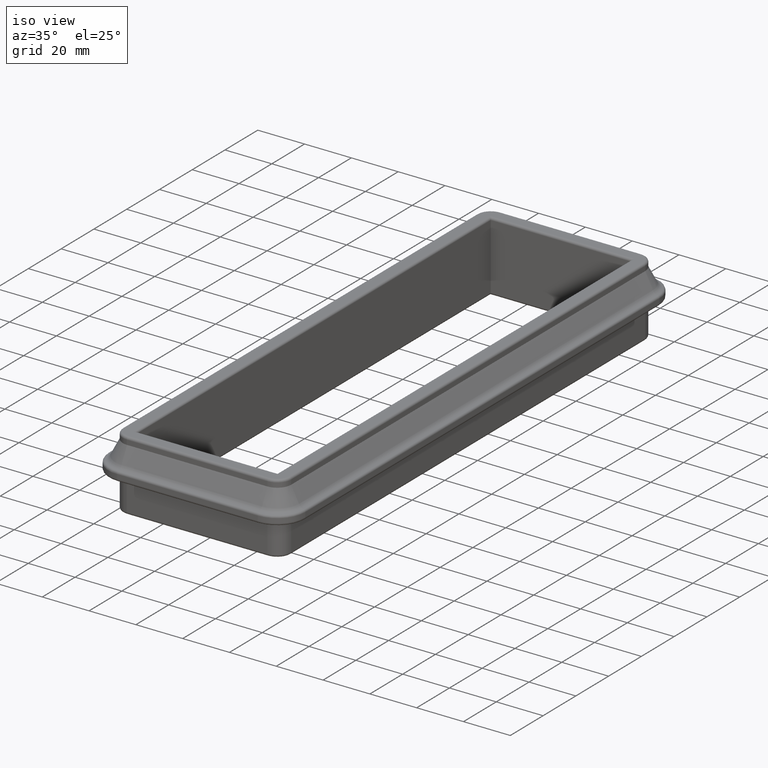
[diagram: clean part render]
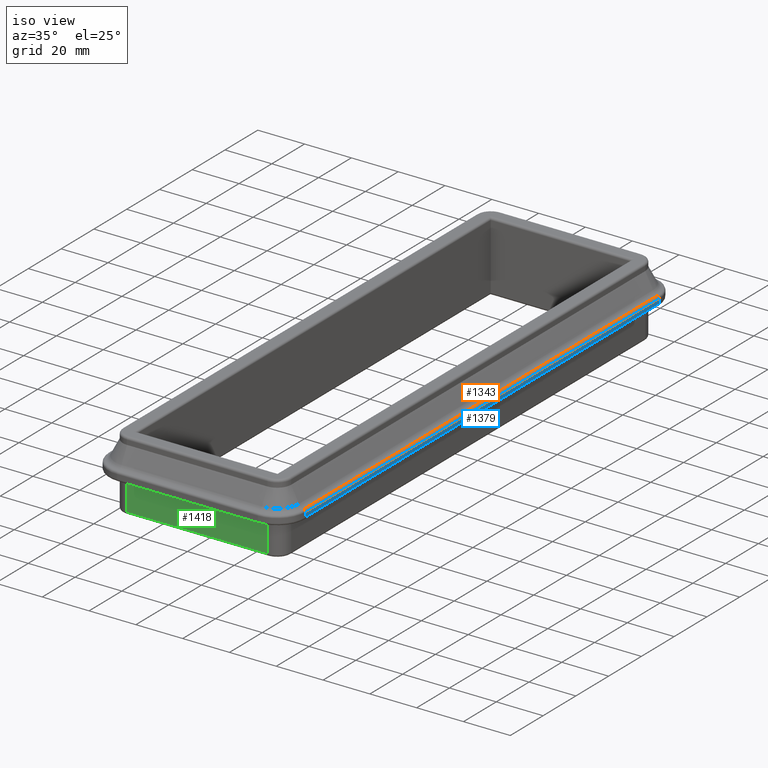
[diagram: same view with three faces highlighted in distinct colors, each labeled with its STEP entity id]
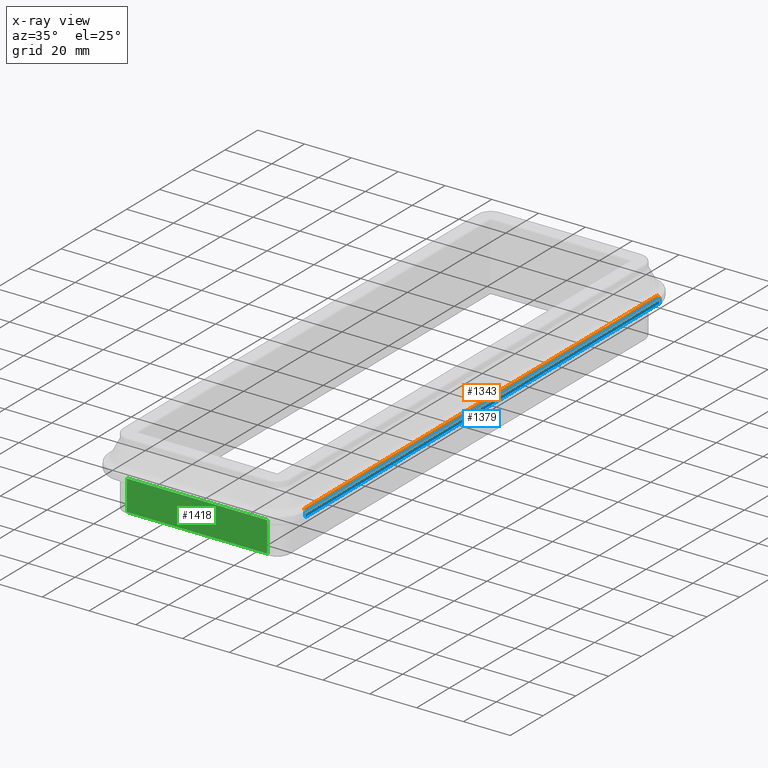
[diagram: x-ray of the same camera — body ghosted, the three highlighted faces saturated]
A machine part, iso view with three faces highlighted in distinct colors.
The next image is the same camera in x-ray (body ghosted, the three faces saturated) — at least one of them is partly hidden behind the body in this view.
Their STEP definitions:

[orange] entity #1343 — the highlighted cylindrical surface (edge-blend (fillet) strip) has radius 1 mm, axis along (0, -1, 0).
#86=FACE_OUTER_BOUND('',#181,.T.);
#181=EDGE_LOOP('',(#918,#919,#920,#921));
#274=LINE('',#2178,#374);
#278=LINE('',#2206,#378);
#374=VECTOR('',#1682,3.);
#378=VECTOR('',#1718,10.);
#486=CIRCLE('',#1474,1.);
#489=CIRCLE('',#1478,1.);
#572=VERTEX_POINT('',#2165);
#576=VERTEX_POINT('',#2177);
#582=VERTEX_POINT('',#2198);
#584=VERTEX_POINT('',#2204);
#691=EDGE_CURVE('',#572,#576,#274,.T.);
#702=EDGE_CURVE('',#576,#582,#486,.T.);
#705=EDGE_CURVE('',#572,#584,#489,.T.);
#706=EDGE_CURVE('',#584,#582,#278,.T.);
#918=ORIENTED_EDGE('',*,*,#691,.F.);
#919=ORIENTED_EDGE('',*,*,#705,.T.);
#920=ORIENTED_EDGE('',*,*,#706,.T.);
#921=ORIENTED_EDGE('',*,*,#702,.F.);
#1294=CYLINDRICAL_SURFACE('',#1477,1.);
#1343=ADVANCED_FACE('',(#86),#1294,.T.);
#1474=AXIS2_PLACEMENT_3D('',#2199,#1708,#1709);
#1477=AXIS2_PLACEMENT_3D('',#2203,#1714,#1715);
#1478=AXIS2_PLACEMENT_3D('',#2205,#1716,#1717);
#1682=DIRECTION('',(0.,1.,0.));
#1708=DIRECTION('center_axis',(0.,1.,0.));
#1709=DIRECTION('ref_axis',(0.,0.,1.));
#1714=DIRECTION('center_axis',(1.85037170770859E-16,-1.,0.));
#1715=DIRECTION('ref_axis',(0.707106781186546,0.,0.707106781186549));
#1716=DIRECTION('center_axis',(0.,1.,0.));
#1717=DIRECTION('ref_axis',(0.,0.,1.));
#1718=DIRECTION('',(-1.85037170770859E-16,1.,0.));
#2165=CARTESIAN_POINT('',(41.2440593939876,-108.,3.96976028595029));
#2177=CARTESIAN_POINT('',(41.2440593939875,108.,3.96976028595029));
#2178=CARTESIAN_POINT('',(41.2440593939875,108.,3.96976028595029));
#2198=CARTESIAN_POINT('',(42.,108.,2.99999999999998));
#2199=CARTESIAN_POINT('Origin',(41.,108.,2.99999999999998));
#2203=CARTESIAN_POINT('Origin',(41.,108.,2.99999999999998));
#2204=CARTESIAN_POINT('',(42.,-108.,2.99999999999998));
#2205=CARTESIAN_POINT('Origin',(41.,-108.,2.99999999999998));
#2206=CARTESIAN_POINT('',(42.,108.,2.99999999999998));

[blue] entity #1379 — the highlighted planar face has unit normal (1, 0, 0).
#33=PLANE('',#1558);
#122=FACE_OUTER_BOUND('',#218,.T.);
#218=EDGE_LOOP('',(#1074,#1075,#1076,#1077));
#278=LINE('',#2206,#378);
#308=LINE('',#2341,#408);
#317=LINE('',#2372,#417);
#318=LINE('',#2373,#418);
#378=VECTOR('',#1718,10.);
#408=VECTOR('',#1872,10.);
#417=VECTOR('',#1917,10.);
#418=VECTOR('',#1918,10.);
#582=VERTEX_POINT('',#2198);
#584=VERTEX_POINT('',#2204);
#626=VERTEX_POINT('',#2335);
#627=VERTEX_POINT('',#2339);
#706=EDGE_CURVE('',#584,#582,#278,.T.);
#773=EDGE_CURVE('',#626,#627,#308,.T.);
#789=EDGE_CURVE('',#626,#582,#317,.T.);
#790=EDGE_CURVE('',#627,#584,#318,.T.);
#1074=ORIENTED_EDGE('',*,*,#773,.F.);
#1075=ORIENTED_EDGE('',*,*,#789,.T.);
#1076=ORIENTED_EDGE('',*,*,#706,.F.);
#1077=ORIENTED_EDGE('',*,*,#790,.F.);
#1379=ADVANCED_FACE('',(#122),#33,.T.);
#1558=AXIS2_PLACEMENT_3D('',#2371,#1915,#1916);
#1718=DIRECTION('',(-1.85037170770859E-16,1.,0.));
#1872=DIRECTION('',(1.85037170770859E-16,-1.,0.));
#1915=DIRECTION('center_axis',(1.,1.85037170770859E-16,0.));
#1916=DIRECTION('ref_axis',(0.,0.,1.));
#1917=DIRECTION('',(0.,0.,1.));
#1918=DIRECTION('',(0.,0.,1.));
#2198=CARTESIAN_POINT('',(42.,108.,2.99999999999998));
#2204=CARTESIAN_POINT('',(42.,-108.,2.99999999999998));
#2206=CARTESIAN_POINT('',(42.,108.,2.99999999999998));
#2335=CARTESIAN_POINT('',(42.,108.,0.999999999999974));
#2339=CARTESIAN_POINT('',(42.,-108.,0.999999999999974));
#2341=CARTESIAN_POINT('',(42.,108.,0.999999999999974));
#2371=CARTESIAN_POINT('Origin',(42.,108.,-2.1802339087941E-14));
#2372=CARTESIAN_POINT('',(42.,108.,-2.1802339087941E-14));
#2373=CARTESIAN_POINT('',(42.,-108.,-2.1802339087941E-14));

[green] entity #1418 — the highlighted planar face has unit normal (0, -1, 0).
#43=PLANE('',#1636);
#161=FACE_OUTER_BOUND('',#259,.T.);
#259=EDGE_LOOP('',(#1246,#1247,#1248,#1249));
#287=LINE('',#2246,#387);
#301=LINE('',#2297,#401);
#358=LINE('',#2514,#458);
#362=LINE('',#2539,#462);
#387=VECTOR('',#1763,10.);
#401=VECTOR('',#1821,10.);
#458=VECTOR('',#2074,10.);
#462=VECTOR('',#2116,10.);
#595=VERTEX_POINT('',#2239);
#597=VERTEX_POINT('',#2244);
#612=VERTEX_POINT('',#2296);
#674=VERTEX_POINT('',#2513);
#725=EDGE_CURVE('',#597,#595,#287,.T.);
#751=EDGE_CURVE('',#612,#595,#301,.T.);
#860=EDGE_CURVE('',#612,#674,#358,.T.);
#873=EDGE_CURVE('',#674,#597,#362,.T.);
#1246=ORIENTED_EDGE('',*,*,#725,.F.);
#1247=ORIENTED_EDGE('',*,*,#873,.F.);
#1248=ORIENTED_EDGE('',*,*,#860,.F.);
#1249=ORIENTED_EDGE('',*,*,#751,.T.);
#1418=ADVANCED_FACE('',(#161),#43,.T.);
#1636=AXIS2_PLACEMENT_3D('',#2540,#2117,#2118);
#1763=DIRECTION('',(1.,0.,0.));
#1821=DIRECTION('',(-1.08770485875751E-31,5.9211894646675E-16,1.));
#2074=DIRECTION('',(-1.,0.,0.));
#2116=DIRECTION('',(-1.08770485875751E-31,5.9211894646675E-16,1.));
#2117=DIRECTION('center_axis',(0.,-1.,5.9211894646675E-16));
#2118=DIRECTION('ref_axis',(-1.08770485875751E-31,5.9211894646675E-16,1.));
#2239=CARTESIAN_POINT('',(30.,-114.,-1.00000000000003));
#2244=CARTESIAN_POINT('',(-30.,-114.,-1.00000000000003));
#2246=CARTESIAN_POINT('',(-3.00000000000002,-114.,-1.00000000000003));
#2296=CARTESIAN_POINT('',(30.,-114.,-14.));
#2297=CARTESIAN_POINT('',(30.,-114.,-15.));
#2513=CARTESIAN_POINT('',(-30.,-114.,-14.));
#2514=CARTESIAN_POINT('',(-4.44089209850063E-15,-114.,-14.));
#2539=CARTESIAN_POINT('',(-30.,-114.,-15.));
#2540=CARTESIAN_POINT('Origin',(30.,-114.,-15.));